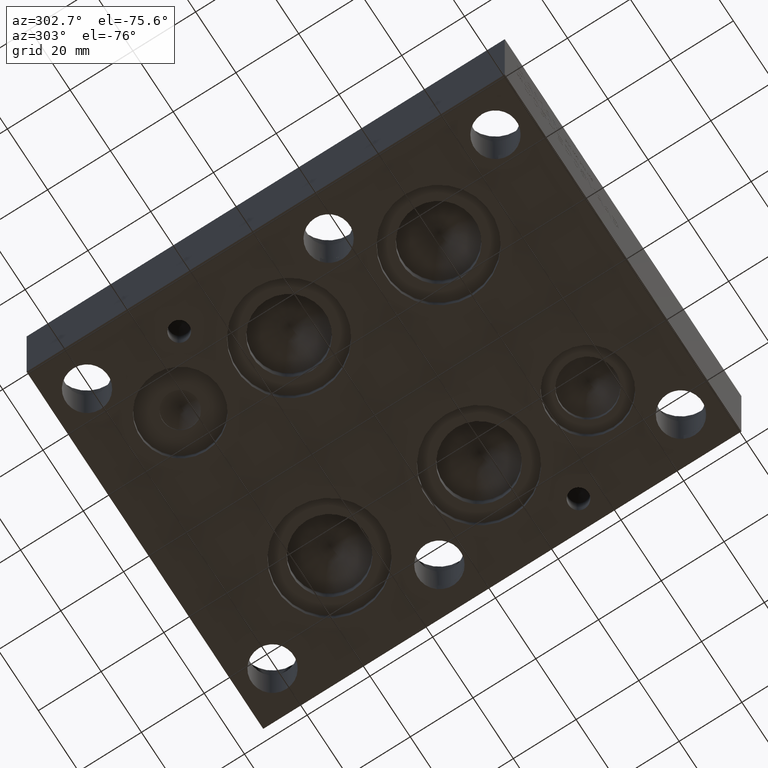
[diagram: clean part render]
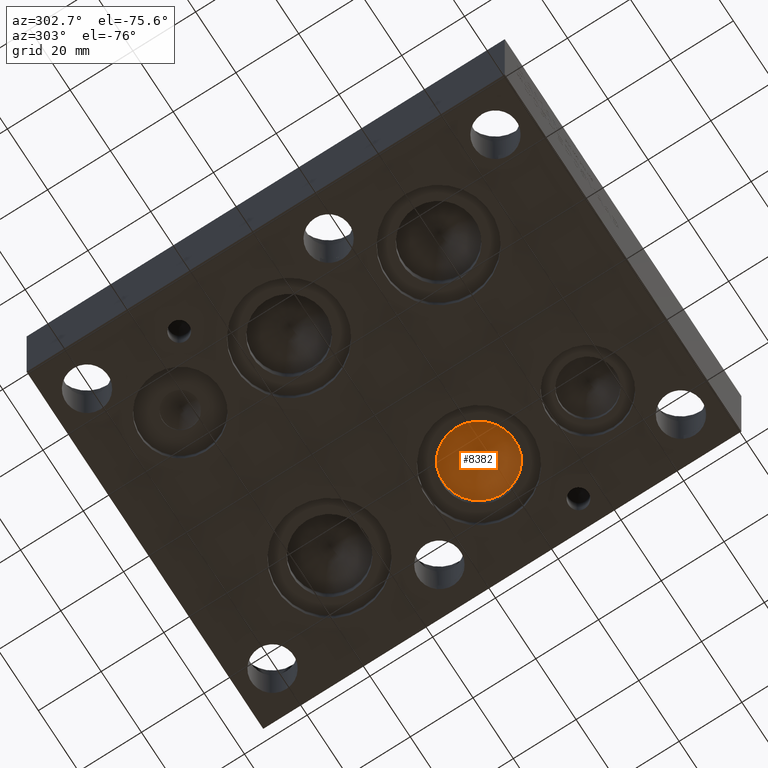
[diagram: same view with one face highlighted and labeled with its STEP entity id]
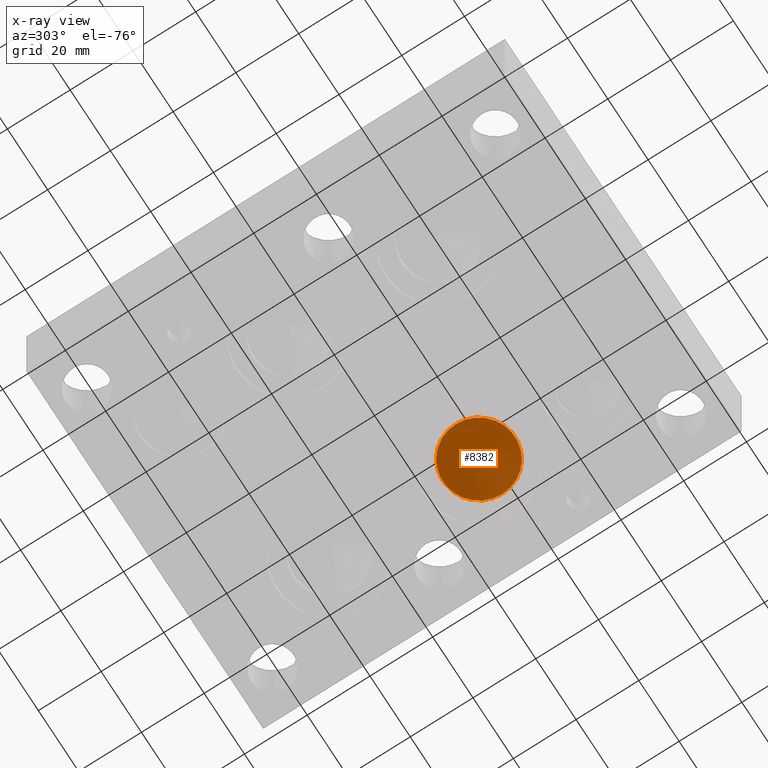
[diagram: x-ray of the same camera — body ghosted, the highlighted face saturated]
A machine part, auxiliary view. The second image highlights one B-rep face of the part: STEP entity #8382.
The next image is the same camera in x-ray: the body ghosted, the highlighted face saturated — about 0% of this face is hidden behind the body in this view.
In plain terms, the highlighted conical surface has half-angle 60 deg.
Its self-contained STEP definition (entity closure, byte-faithful):
#70=CIRCLE('',#8760,11.5062);
#161=CONICAL_SURFACE('',#8759,5.7531,1.0471975511966);
#912=FACE_OUTER_BOUND('',#1392,.T.);
#1392=EDGE_LOOP('',(#7057,#7058,#7059));
#2296=LINE('',#13893,#3144);
#3144=VECTOR('',#10269,5.7531);
#3867=VERTEX_POINT('',#13890);
#3868=VERTEX_POINT('',#13892);
#4956=EDGE_CURVE('',#3867,#3867,#70,.T.);
#4957=EDGE_CURVE('',#3867,#3868,#2296,.T.);
#7057=ORIENTED_EDGE('',*,*,#4956,.T.);
#7058=ORIENTED_EDGE('',*,*,#4957,.T.);
#7059=ORIENTED_EDGE('',*,*,#4957,.F.);
#8382=ADVANCED_FACE('',(#912),#161,.F.);
#8759=AXIS2_PLACEMENT_3D('',#13889,#10265,#10266);
#8760=AXIS2_PLACEMENT_3D('',#13891,#10267,#10268);
#10265=DIRECTION('center_axis',(0.,0.,-1.));
#10266=DIRECTION('ref_axis',(1.,0.,0.));
#10267=DIRECTION('center_axis',(0.,0.,-1.));
#10268=DIRECTION('ref_axis',(1.,0.,0.));
#10269=DIRECTION('',(0.866025403784439,-1.06057523872491E-16,0.5));
#13889=CARTESIAN_POINT('Origin',(87.3252,64.2874,9.96466383367484));
#13890=CARTESIAN_POINT('',(75.819,64.2874,6.64311));
#13891=CARTESIAN_POINT('Origin',(87.3252,64.2874,6.64311));
#13892=CARTESIAN_POINT('',(87.3252,64.2874,13.2862176673497));
#13893=CARTESIAN_POINT('',(81.5721,64.2874,9.96466383367484));